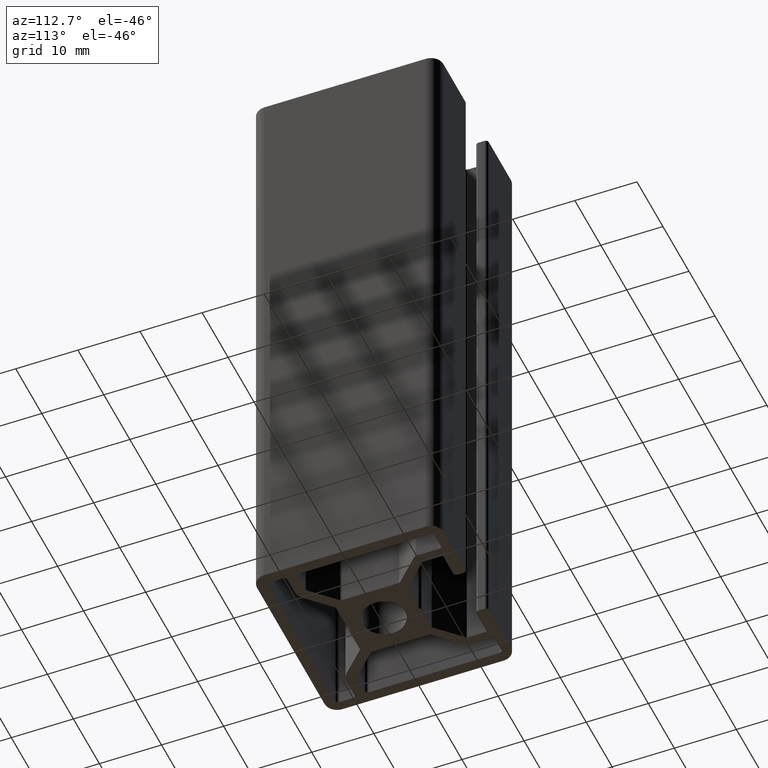
[diagram: clean part render]
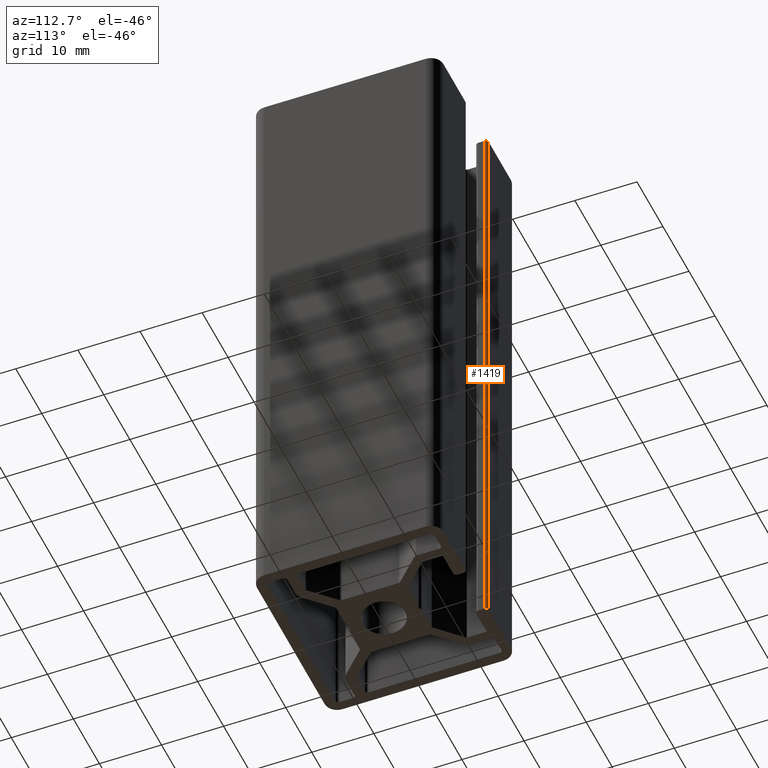
[diagram: same view with one face highlighted and labeled with its STEP entity id]
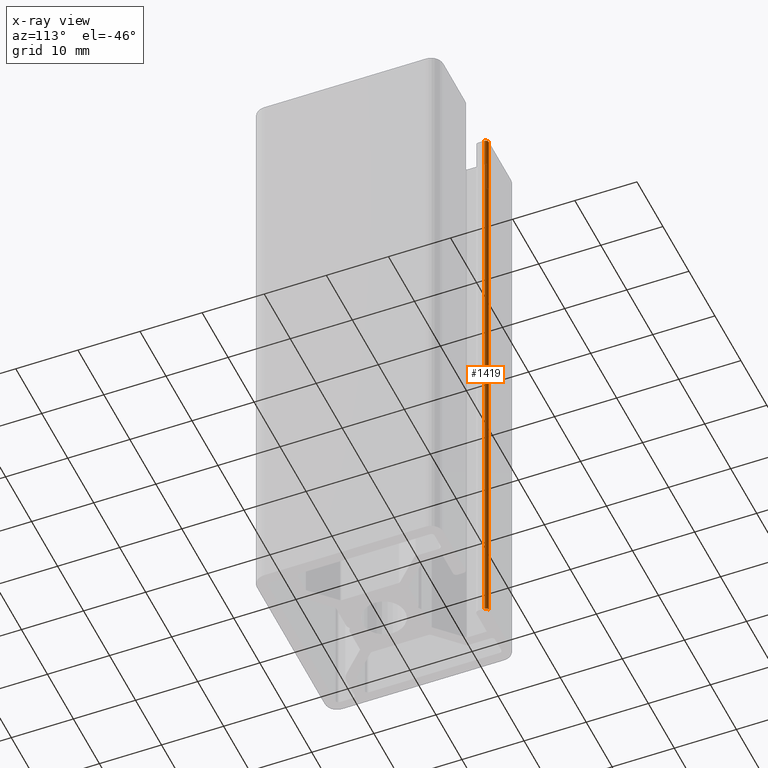
[diagram: x-ray of the same camera — body ghosted, the highlighted face saturated]
A machine part, auxiliary view. The second image highlights one B-rep face of the part: STEP entity #1419.
The next image is the same camera in x-ray: the body ghosted, the highlighted face saturated — about 0% of this face is hidden behind the body in this view.
In plain terms, the highlighted cylindrical surface (edge-blend (fillet) strip) has radius 0.5 mm, axis along (0, 0, 1).
Its self-contained STEP definition (entity closure, byte-faithful):
#38=CIRCLE('',#1509,0.500000002027375);
#39=CIRCLE('',#1510,0.500000002027375);
#89=CYLINDRICAL_SURFACE('',#1508,0.500000002027375);
#134=FACE_OUTER_BOUND('',#207,.T.);
#207=EDGE_LOOP('',(#1020,#1021,#1022,#1023));
#321=LINE('',#2161,#475);
#322=LINE('',#2167,#476);
#475=VECTOR('',#1733,100.);
#476=VECTOR('',#1740,100.);
#620=VERTEX_POINT('',#2157);
#621=VERTEX_POINT('',#2159);
#622=VERTEX_POINT('',#2163);
#623=VERTEX_POINT('',#2165);
#785=EDGE_CURVE('',#621,#620,#321,.T.);
#786=EDGE_CURVE('',#620,#622,#38,.T.);
#787=EDGE_CURVE('',#623,#621,#39,.T.);
#788=EDGE_CURVE('',#622,#623,#322,.T.);
#1020=ORIENTED_EDGE('',*,*,#786,.F.);
#1021=ORIENTED_EDGE('',*,*,#785,.F.);
#1022=ORIENTED_EDGE('',*,*,#787,.F.);
#1023=ORIENTED_EDGE('',*,*,#788,.F.);
#1419=ADVANCED_FACE('',(#134),#89,.T.);
#1508=AXIS2_PLACEMENT_3D('',#2162,#1734,#1735);
#1509=AXIS2_PLACEMENT_3D('',#2164,#1736,#1737);
#1510=AXIS2_PLACEMENT_3D('',#2166,#1738,#1739);
#1733=DIRECTION('',(0.,0.,1.));
#1734=DIRECTION('center_axis',(0.,0.,1.));
#1735=DIRECTION('ref_axis',(-1.,4.44089208049469E-15,0.));
#1736=DIRECTION('center_axis',(0.,0.,1.));
#1737=DIRECTION('ref_axis',(-1.,4.44089208049469E-15,0.));
#1738=DIRECTION('center_axis',(0.,0.,-1.));
#1739=DIRECTION('ref_axis',(-1.,4.44089208049469E-15,0.));
#1740=DIRECTION('',(0.,0.,-1.));
#2157=CARTESIAN_POINT('',(-3.99999998373919,14.4999999881044,100.));
#2159=CARTESIAN_POINT('',(-3.99999998373919,14.4999999881044,0.));
#2161=CARTESIAN_POINT('',(-3.99999998373919,14.4999999881044,0.));
#2162=CARTESIAN_POINT('Origin',(-4.49999998576647,14.4999999881044,0.));
#2163=CARTESIAN_POINT('',(-4.49999998576647,14.9999999901317,100.));
#2164=CARTESIAN_POINT('Origin',(-4.49999998576647,14.4999999881044,100.));
#2165=CARTESIAN_POINT('',(-4.49999998576647,14.9999999901317,0.));
#2166=CARTESIAN_POINT('Origin',(-4.49999998576647,14.4999999881044,0.));
#2167=CARTESIAN_POINT('',(-4.49999998575889,14.9999999961942,0.));